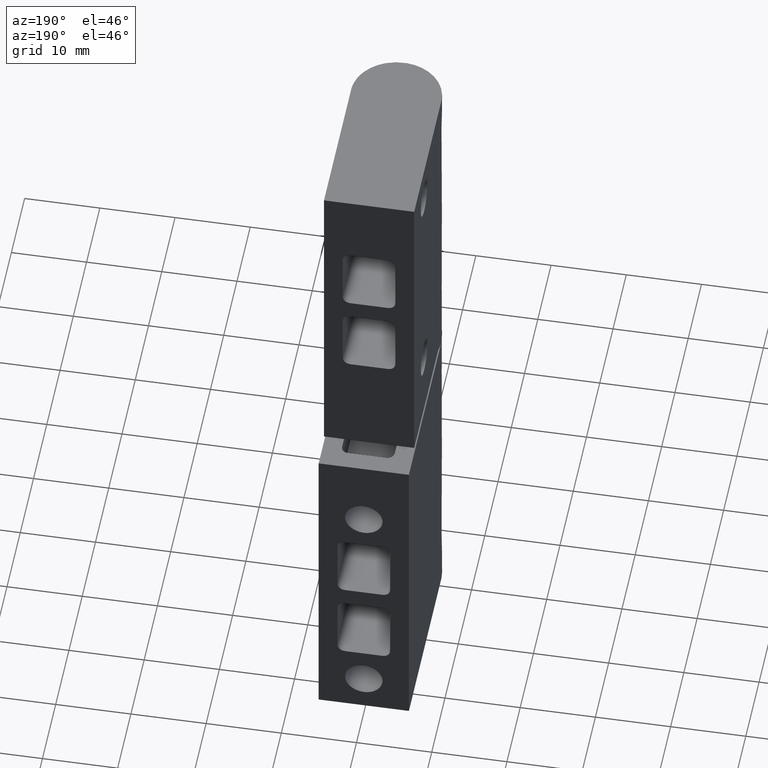
[diagram: clean part render]
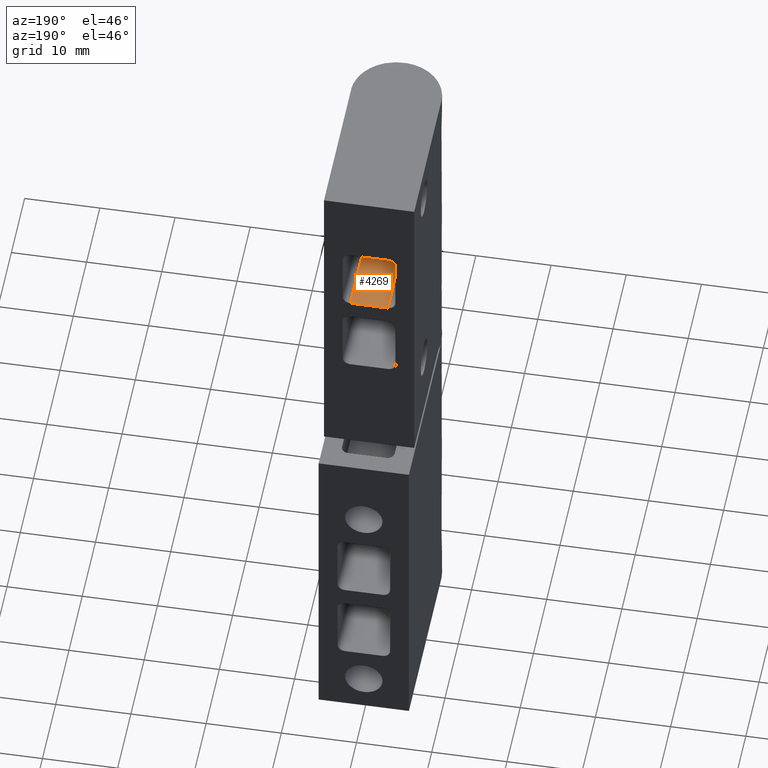
[diagram: same view with one face highlighted and labeled with its STEP entity id]
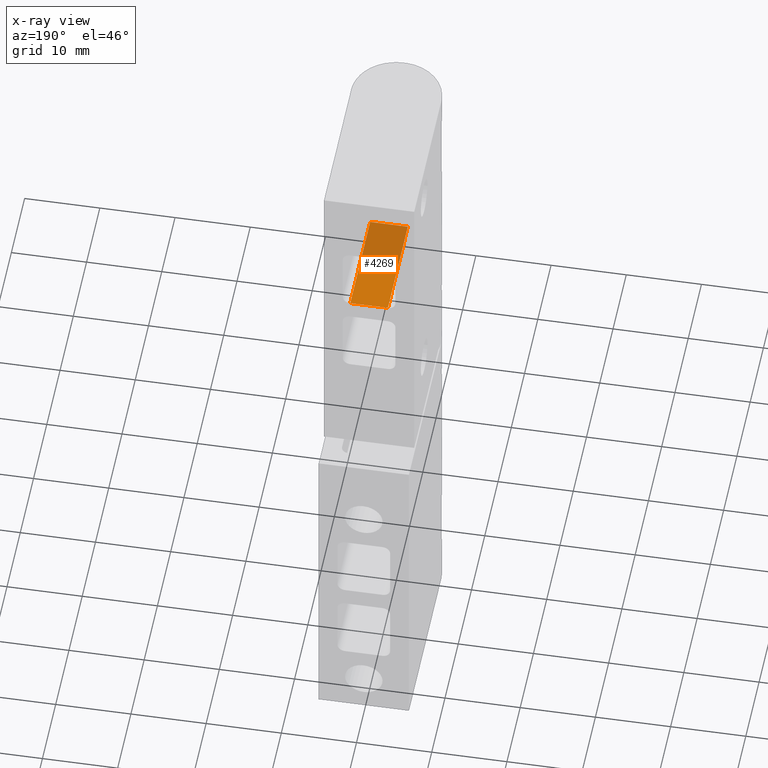
[diagram: x-ray of the same camera — body ghosted, the highlighted face saturated]
A machine part, auxiliary view. The second image highlights one B-rep face of the part: STEP entity #4269.
The next image is the same camera in x-ray: the body ghosted, the highlighted face saturated — about 44% of this face is hidden behind the body in this view.
In plain terms, the highlighted face is a freeform B-spline surface patch.
Its self-contained STEP definition (entity closure, byte-faithful):
#3848=CARTESIAN_POINT('',(-2.500000166241135,5.500000973677490,71.250003384193704));
#3849=VERTEX_POINT('',#3848);
#3865=CARTESIAN_POINT('',(-2.500000166241135,20.500000973677501,71.250003384193704));
#3866=VERTEX_POINT('',#3865);
#3867=CARTESIAN_POINT('',(-2.500000166241135,20.500000973677501,71.250003384193704));
#3868=CARTESIAN_POINT('',(-2.500000166241135,5.500000973677490,71.250003384193704));
#3869=QUASI_UNIFORM_CURVE('',1,(#3867,#3868),.UNSPECIFIED.,.F.,.U.);
#3870=EDGE_CURVE('',#3866,#3849,#3869,.T.);
#3972=CARTESIAN_POINT('',(2.500000166240965,5.500000973677490,71.250003384193704));
#3973=VERTEX_POINT('',#3972);
#3994=CARTESIAN_POINT('',(2.500000166240965,20.500000973677501,71.250003384193704));
#3995=VERTEX_POINT('',#3994);
#4009=CARTESIAN_POINT('',(2.500000166240965,5.500000973677490,71.250003384193704));
#4010=CARTESIAN_POINT('',(2.500000166240965,20.500000973677501,71.250003384193704));
#4011=QUASI_UNIFORM_CURVE('',1,(#4009,#4010),.UNSPECIFIED.,.F.,.U.);
#4012=EDGE_CURVE('',#3973,#3995,#4011,.T.);
#4185=CARTESIAN_POINT('',(2.500000166240965,5.500000973677490,71.250003384193704));
#4186=CARTESIAN_POINT('',(-2.500000166241135,5.500000973677490,71.250003384193704));
#4187=QUASI_UNIFORM_CURVE('',1,(#4185,#4186),.UNSPECIFIED.,.F.,.U.);
#4188=EDGE_CURVE('',#3973,#3849,#4187,.T.);
#4254=CARTESIAN_POINT('',(2.749750267030326,4.750750949159864,71.250003384193704));
#4255=CARTESIAN_POINT('',(-2.749750311733983,4.750750949159864,71.250003384193704));
#4256=CARTESIAN_POINT('',(2.749750267030326,21.249252473410088,71.250003384193690));
#4257=CARTESIAN_POINT('',(-2.749750311733983,21.249252473410088,71.250003384193690));
#4258=B_SPLINE_SURFACE_WITH_KNOTS('',1,1,((#4254,#4256),(#4255,#4257)),.UNSPECIFIED.,.F.,.F.,.U.,(2,2),(2,2),(0.0,5.499500578764309),(0.0,16.498501524250219),.UNSPECIFIED.);
#4259=ORIENTED_EDGE('',*,*,#4188,.F.);
#4260=ORIENTED_EDGE('',*,*,#4012,.T.);
#4261=CARTESIAN_POINT('',(2.500000166240965,20.500000973677501,71.250003384193704));
#4262=CARTESIAN_POINT('',(-2.500000166241135,20.500000973677501,71.250003384193704));
#4263=QUASI_UNIFORM_CURVE('',1,(#4261,#4262),.UNSPECIFIED.,.F.,.U.);
#4264=EDGE_CURVE('',#3995,#3866,#4263,.T.);
#4265=ORIENTED_EDGE('',*,*,#4264,.T.);
#4266=ORIENTED_EDGE('',*,*,#3870,.T.);
#4267=EDGE_LOOP('',(#4259,#4260,#4265,#4266));
#4268=FACE_OUTER_BOUND('',#4267,.T.);
#4269=ADVANCED_FACE('',(#4268),#4258,.F.);